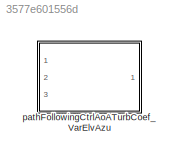
MODEL slx_3577e601556d
KIND library
CONFIG AbsTol = auto
CONFIG EnableMultiTasking = off
CONFIG FixedStep = auto
CONFIG MaxStep = auto
CONFIG MinStep = auto
CONFIG RelTol = 1e-3
CONFIG SampleTimeConstraint = Unconstrained
CONFIG SolverName = VariableStepAuto
CONFIG StartTime = 0.0
CONFIG StopTime = 10.0
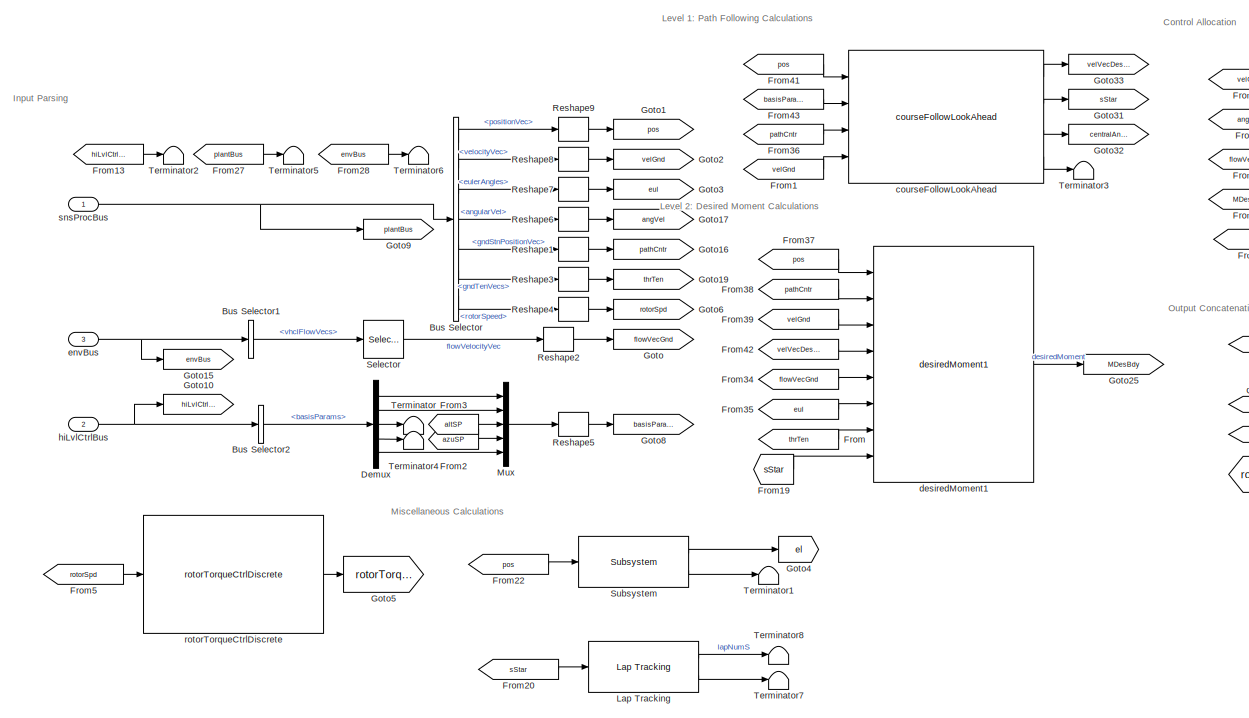
[diagram: pathFollowingCtrlAoATurbCoef_VarElvAzu - part 1/3, center side, full height]
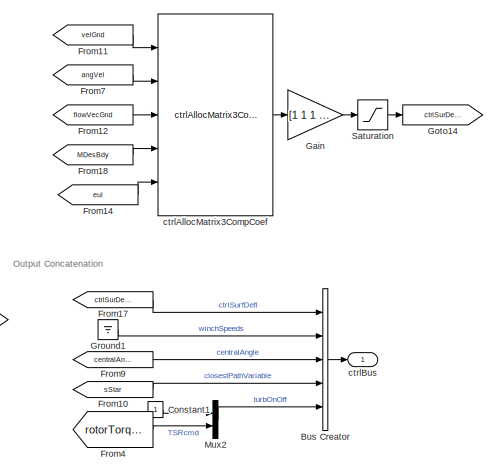
[diagram: pathFollowingCtrlAoATurbCoef_VarElvAzu - part 2/3, middle right region]
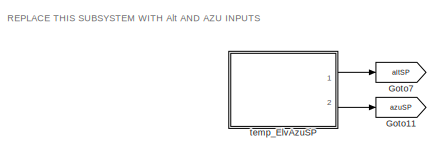
[diagram: pathFollowingCtrlAoATurbCoef_VarElvAzu - part 3/3, middle left region]
BLOCK [SubSystem] pathFollowingCtrlAoATurbCoef_VarElvAzu
  InitFcn = initializeBussesFromBlock(gcb);
  LoadFcn = initializeBussesFromBlock(gcb);
  Ports = [3, 1]
  PreSaveFcn = initializeBussesFromBlock(gcb);
  RequestExecContextInheritance = off
  VariantControl = strcmpi(FLIGHTCONTROLLER,'pathFollowingCtrlAoATurbCoef_varElvAzu')
BLOCK [BusCreator] pathFollowingCtrlAoATurbCoef_VarElvAzu/Bus Creator
  DisplayOption = bar
  InheritFromInputs = on
  Inputs = 5
  Ports = [5, 1]
BLOCK [BusSelector] pathFollowingCtrlAoATurbCoef_VarElvAzu/Bus Selector
  OutputSignals = positionVec,velocityVec,eulerAngles,angularVel,gndStnPositionVec,gndTenVecs,rotorSpeed
  Ports = [1, 7]
BLOCK [BusSelector] pathFollowingCtrlAoATurbCoef_VarElvAzu/Bus Selector1
  OutputSignals = vhclFlowVecs
  Ports = [1, 1]
BLOCK [BusSelector] pathFollowingCtrlAoATurbCoef_VarElvAzu/Bus Selector2
  OutputSignals = basisParams
  Ports = [1, 1]
BLOCK [Constant] pathFollowingCtrlAoATurbCoef_VarElvAzu/Constant1
BLOCK [Demux] pathFollowingCtrlAoATurbCoef_VarElvAzu/Demux
  Outputs = 5
  Ports = [1, 5]
BLOCK [From] pathFollowingCtrlAoATurbCoef_VarElvAzu/From
  GotoTag = thrTen
BLOCK [From] pathFollowingCtrlAoATurbCoef_VarElvAzu/From1
  GotoTag = velGnd
BLOCK [From] pathFollowingCtrlAoATurbCoef_VarElvAzu/From10
  GotoTag = sStar
BLOCK [From] pathFollowingCtrlAoATurbCoef_VarElvAzu/From11
  GotoTag = velGnd
BLOCK [From] pathFollowingCtrlAoATurbCoef_VarElvAzu/From12
  GotoTag = flowVecGnd
BLOCK [From] pathFollowingCtrlAoATurbCoef_VarElvAzu/From13
  GotoTag = hiLvlCtrlBus
BLOCK [From] pathFollowingCtrlAoATurbCoef_VarElvAzu/From14
  GotoTag = eul
BLOCK [From] pathFollowingCtrlAoATurbCoef_VarElvAzu/From17
  GotoTag = ctrlSurDefl
BLOCK [From] pathFollowingCtrlAoATurbCoef_VarElvAzu/From18
  GotoTag = MDesBdy
BLOCK [From] pathFollowingCtrlAoATurbCoef_VarElvAzu/From19
  GotoTag = sStar
BLOCK [From] pathFollowingCtrlAoATurbCoef_VarElvAzu/From2
  GotoTag = azuSP
BLOCK [From] pathFollowingCtrlAoATurbCoef_VarElvAzu/From20
  GotoTag = sStar
BLOCK [From] pathFollowingCtrlAoATurbCoef_VarElvAzu/From22
  GotoTag = pos
BLOCK [From] pathFollowingCtrlAoATurbCoef_VarElvAzu/From27
  GotoTag = plantBus
BLOCK [From] pathFollowingCtrlAoATurbCoef_VarElvAzu/From28
  GotoTag = envBus
BLOCK [From] pathFollowingCtrlAoATurbCoef_VarElvAzu/From3
  GotoTag = altSP
BLOCK [From] pathFollowingCtrlAoATurbCoef_VarElvAzu/From34
  GotoTag = flowVecGnd
BLOCK [From] pathFollowingCtrlAoATurbCoef_VarElvAzu/From35
  GotoTag = eul
BLOCK [From] pathFollowingCtrlAoATurbCoef_VarElvAzu/From36
  GotoTag = pathCntr
BLOCK [From] pathFollowingCtrlAoATurbCoef_VarElvAzu/From37
  GotoTag = pos
BLOCK [From] pathFollowingCtrlAoATurbCoef_VarElvAzu/From38
  GotoTag = pathCntr
BLOCK [From] pathFollowingCtrlAoATurbCoef_VarElvAzu/From39
  GotoTag = velGnd
BLOCK [From] pathFollowingCtrlAoATurbCoef_VarElvAzu/From4
  GotoTag = rotorTorque
BLOCK [From] pathFollowingCtrlAoATurbCoef_VarElvAzu/From41
  GotoTag = pos
BLOCK [From] pathFollowingCtrlAoATurbCoef_VarElvAzu/From42
  GotoTag = velVecDesGnd
BLOCK [From] pathFollowingCtrlAoATurbCoef_VarElvAzu/From43
  GotoTag = basisParams
BLOCK [From] pathFollowingCtrlAoATurbCoef_VarElvAzu/From5
  GotoTag = rotorSpd
BLOCK [From] pathFollowingCtrlAoATurbCoef_VarElvAzu/From7
  GotoTag = angVel
BLOCK [From] pathFollowingCtrlAoATurbCoef_VarElvAzu/From9
  GotoTag = centralAngle
BLOCK [Gain] pathFollowingCtrlAoATurbCoef_VarElvAzu/Gain
  Gain = [1 1 1 -1]
BLOCK [Goto] pathFollowingCtrlAoATurbCoef_VarElvAzu/Goto
  GotoTag = flowVecGnd
BLOCK [Goto] pathFollowingCtrlAoATurbCoef_VarElvAzu/Goto1
  GotoTag = pos
BLOCK [Goto] pathFollowingCtrlAoATurbCoef_VarElvAzu/Goto10
  GotoTag = hiLvlCtrlBus
BLOCK [Goto] pathFollowingCtrlAoATurbCoef_VarElvAzu/Goto11
  GotoTag = azuSP
BLOCK [Goto] pathFollowingCtrlAoATurbCoef_VarElvAzu/Goto14
  GotoTag = ctrlSurDefl
BLOCK [Goto] pathFollowingCtrlAoATurbCoef_VarElvAzu/Goto15
  GotoTag = envBus
BLOCK [Goto] pathFollowingCtrlAoATurbCoef_VarElvAzu/Goto16
  GotoTag = pathCntr
BLOCK [Goto] pathFollowingCtrlAoATurbCoef_VarElvAzu/Goto17
  GotoTag = angVel
BLOCK [Goto] pathFollowingCtrlAoATurbCoef_VarElvAzu/Goto19
  GotoTag = thrTen
BLOCK [Goto] pathFollowingCtrlAoATurbCoef_VarElvAzu/Goto2
  GotoTag = velGnd
BLOCK [Goto] pathFollowingCtrlAoATurbCoef_VarElvAzu/Goto25
  GotoTag = MDesBdy
BLOCK [Goto] pathFollowingCtrlAoATurbCoef_VarElvAzu/Goto3
  GotoTag = eul
BLOCK [Goto] pathFollowingCtrlAoATurbCoef_VarElvAzu/Goto31
  GotoTag = sStar
BLOCK [Goto] pathFollowingCtrlAoATurbCoef_VarElvAzu/Goto32
  GotoTag = centralAngle
BLOCK [Goto] pathFollowingCtrlAoATurbCoef_VarElvAzu/Goto33
  GotoTag = velVecDesGnd
BLOCK [Goto] pathFollowingCtrlAoATurbCoef_VarElvAzu/Goto4
  GotoTag = el
BLOCK [Goto] pathFollowingCtrlAoATurbCoef_VarElvAzu/Goto5
  GotoTag = rotorTorque
BLOCK [Goto] pathFollowingCtrlAoATurbCoef_VarElvAzu/Goto6
  GotoTag = rotorSpd
BLOCK [Goto] pathFollowingCtrlAoATurbCoef_VarElvAzu/Goto7
  GotoTag = altSP
BLOCK [Goto] pathFollowingCtrlAoATurbCoef_VarElvAzu/Goto8
  GotoTag = basisParams
BLOCK [Goto] pathFollowingCtrlAoATurbCoef_VarElvAzu/Goto9
  GotoTag = plantBus
BLOCK [Ground] pathFollowingCtrlAoATurbCoef_VarElvAzu/Ground1
BLOCK [Reference] pathFollowingCtrlAoATurbCoef_VarElvAzu/Lap Tracking  REF=pathFollowingCtrlAoATurbOpt_cl/pathFollowingCtrlAoATurbOpt/Lap Tracking
  Ports = [1, 2]
  SourceBlock = pathFollowingCtrlAoATurbOpt_cl/pathFollowingCtrlAoATurbOpt/Lap Tracking
  SourceType = SubSystem
BLOCK [Mux] pathFollowingCtrlAoATurbCoef_VarElvAzu/Mux
  DisplayOption = bar
  Inputs = 5
  Ports = [5, 1]
BLOCK [Mux] pathFollowingCtrlAoATurbCoef_VarElvAzu/Mux2
  DisplayOption = bar
  Inputs = 2
  Ports = [2, 1]
BLOCK [Reshape] pathFollowingCtrlAoATurbCoef_VarElvAzu/Reshape1
  OutputDimensionality = Column vector (2-D)
  Ports = [1, 1]
BLOCK [Reshape] pathFollowingCtrlAoATurbCoef_VarElvAzu/Reshape2
  OutputDimensionality = Column vector (2-D)
  Ports = [1, 1]
BLOCK [Reshape] pathFollowingCtrlAoATurbCoef_VarElvAzu/Reshape3
  OutputDimensionality = Column vector (2-D)
  Ports = [1, 1]
BLOCK [Reshape] pathFollowingCtrlAoATurbCoef_VarElvAzu/Reshape4
  OutputDimensionality = Column vector (2-D)
  Ports = [1, 1]
BLOCK [Reshape] pathFollowingCtrlAoATurbCoef_VarElvAzu/Reshape5
  OutputDimensionality = Column vector (2-D)
  Ports = [1, 1]
BLOCK [Reshape] pathFollowingCtrlAoATurbCoef_VarElvAzu/Reshape6
  OutputDimensionality = Column vector (2-D)
  Ports = [1, 1]
BLOCK [Reshape] pathFollowingCtrlAoATurbCoef_VarElvAzu/Reshape7
  OutputDimensionality = Column vector (2-D)
  Ports = [1, 1]
BLOCK [Reshape] pathFollowingCtrlAoATurbCoef_VarElvAzu/Reshape8
  OutputDimensionality = Column vector (2-D)
  Ports = [1, 1]
BLOCK [Reshape] pathFollowingCtrlAoATurbCoef_VarElvAzu/Reshape9
  OutputDimensionality = Column vector (2-D)
  Ports = [1, 1]
BLOCK [Saturate] pathFollowingCtrlAoATurbCoef_VarElvAzu/Saturation
  LowerLimit = -90
  UpperLimit = 90
BLOCK [Selector] pathFollowingCtrlAoATurbCoef_VarElvAzu/Selector
  IndexOptions = Select all,Index vector (dialog)
  Indices = [1 3],5
  InputPortWidth = 3
  NumberOfDimensions = 2
  OutputSizes = 1,1
  Ports = [1, 1]
BLOCK [Reference] pathFollowingCtrlAoATurbCoef_VarElvAzu/Subsystem  REF=pathFollowingCtrlAoATurbCoef_cl/pathFollowingCtrlAoATurbCoef/Subsystem
  Ports = [1, 2]
  SourceBlock = pathFollowingCtrlAoATurbCoef_cl/pathFollowingCtrlAoATurbCoef/Subsystem
BLOCK [Terminator] pathFollowingCtrlAoATurbCoef_VarElvAzu/Terminator
BLOCK [Terminator] pathFollowingCtrlAoATurbCoef_VarElvAzu/Terminator1
BLOCK [Terminator] pathFollowingCtrlAoATurbCoef_VarElvAzu/Terminator2
BLOCK [Terminator] pathFollowingCtrlAoATurbCoef_VarElvAzu/Terminator3
BLOCK [Terminator] pathFollowingCtrlAoATurbCoef_VarElvAzu/Terminator4
BLOCK [Terminator] pathFollowingCtrlAoATurbCoef_VarElvAzu/Terminator5
BLOCK [Terminator] pathFollowingCtrlAoATurbCoef_VarElvAzu/Terminator6
BLOCK [Terminator] pathFollowingCtrlAoATurbCoef_VarElvAzu/Terminator7
BLOCK [Terminator] pathFollowingCtrlAoATurbCoef_VarElvAzu/Terminator8
BLOCK [Reference] pathFollowingCtrlAoATurbCoef_VarElvAzu/courseFollowLookAhead  REF=courseFollowLookAhead_cl/courseFollowLookAhead
  Ports = [4, 4]
  SourceBlock = courseFollowLookAhead_cl/courseFollowLookAhead
  SourceType = SubSystem
BLOCK [Reference] pathFollowingCtrlAoATurbCoef_VarElvAzu/ctrlAllocMatrix3CompCoef  REF=ctrlAllocMatrix3CompCoef_cl/ctrlAllocMatrix3CompCoef
  Ports = [5, 1]
  SourceBlock = ctrlAllocMatrix3CompCoef_cl/ctrlAllocMatrix3CompCoef
BLOCK [Outport] pathFollowingCtrlAoATurbCoef_VarElvAzu/ctrlBus
  OutDataTypeStr = Bus: fltCtrlBus
  VectorParamsAs1DForOutWhenUnconnected = off
BLOCK [Reference] pathFollowingCtrlAoATurbCoef_VarElvAzu/desiredMoment1  REF=pathFollowingCtrlAoATurbCoef_cl/pathFollowingCtrlAoATurbCoef/desiredMoment1
  Ports = [8, 1]
  SourceBlock = pathFollowingCtrlAoATurbCoef_cl/pathFollowingCtrlAoATurbCoef/desiredMoment1
  SourceType = SubSystem
BLOCK [Inport] pathFollowingCtrlAoATurbCoef_VarElvAzu/envBus
  OutDataTypeStr = Bus: envBus
  Port = 3
BLOCK [Inport] pathFollowingCtrlAoATurbCoef_VarElvAzu/hiLvlCtrlBus
  Port = 2
BLOCK [Reference] pathFollowingCtrlAoATurbCoef_VarElvAzu/rotorTorqueCtrlDiscrete  REF=rotorTorqueCtrlDiscrete/rotorTorqueCtrlDiscrete
  Ports = [1, 1]
  SourceBlock = rotorTorqueCtrlDiscrete/rotorTorqueCtrlDiscrete
BLOCK [Inport] pathFollowingCtrlAoATurbCoef_VarElvAzu/snsProcBus
  OutDataTypeStr = Bus: sensorsProcessingBus
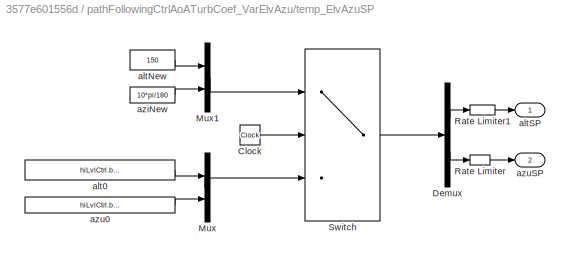
BLOCK [SubSystem] pathFollowingCtrlAoATurbCoef_VarElvAzu/temp_ElvAzuSP
  Ports = [0, 2]
  RequestExecContextInheritance = off
BLOCK [Clock] pathFollowingCtrlAoATurbCoef_VarElvAzu/temp_ElvAzuSP/Clock
BLOCK [Demux] pathFollowingCtrlAoATurbCoef_VarElvAzu/temp_ElvAzuSP/Demux
  Outputs = 2
  Ports = [1, 2]
BLOCK [Mux] pathFollowingCtrlAoATurbCoef_VarElvAzu/temp_ElvAzuSP/Mux
  DisplayOption = bar
  Inputs = 2
  Ports = [2, 1]
BLOCK [Mux] pathFollowingCtrlAoATurbCoef_VarElvAzu/temp_ElvAzuSP/Mux1
  DisplayOption = bar
  Inputs = 2
  Ports = [2, 1]
BLOCK [RateLimiter] pathFollowingCtrlAoATurbCoef_VarElvAzu/temp_ElvAzuSP/Rate Limiter
  FallingSlewLimit = -0.025*pi/180
  RisingSlewLimit = 0.025*pi/180
  SampleTimeMode = inherited
BLOCK [RateLimiter] pathFollowingCtrlAoATurbCoef_VarElvAzu/temp_ElvAzuSP/Rate Limiter1
  FallingSlewLimit = -flwSpd/2
  RisingSlewLimit = flwSpd/2
  SampleTimeMode = inherited
BLOCK [Switch] pathFollowingCtrlAoATurbCoef_VarElvAzu/temp_ElvAzuSP/Switch
  Criteria = u2 > Threshold
  InputSameDT = off
  SaturateOnIntegerOverflow = off
  Threshold = 500
BLOCK [Constant] pathFollowingCtrlAoATurbCoef_VarElvAzu/temp_ElvAzuSP/alt0
  Value = hiLvlCtrl.basisParams.Value(3)
BLOCK [Constant] pathFollowingCtrlAoATurbCoef_VarElvAzu/temp_ElvAzuSP/altNew
  Value = 150
BLOCK [Outport] pathFollowingCtrlAoATurbCoef_VarElvAzu/temp_ElvAzuSP/altSP
BLOCK [Constant] pathFollowingCtrlAoATurbCoef_VarElvAzu/temp_ElvAzuSP/aziNew
  OutDataTypeStr = Inherit: Inherit via back propagation
  Value = 10*pi/180
BLOCK [Constant] pathFollowingCtrlAoATurbCoef_VarElvAzu/temp_ElvAzuSP/azu0
  OutDataTypeStr = Inherit: Inherit via back propagation
  Value = hiLvlCtrl.basisParams.Value(4)
BLOCK [Outport] pathFollowingCtrlAoATurbCoef_VarElvAzu/temp_ElvAzuSP/azuSP
  Port = 2
ANNOTATION pathFollowingCtrlAoATurbCoef_VarElvAzu: REPLACE THIS SUBSYSTEM WITH Alt AND AZU INPUTS
ANNOTATION pathFollowingCtrlAoATurbCoef_VarElvAzu: Control Allocation
ANNOTATION pathFollowingCtrlAoATurbCoef_VarElvAzu: Input Parsing
ANNOTATION pathFollowingCtrlAoATurbCoef_VarElvAzu: Level 1: Path Following Calculations
ANNOTATION pathFollowingCtrlAoATurbCoef_VarElvAzu: Level 2: Desired Moment Calculations
ANNOTATION pathFollowingCtrlAoATurbCoef_VarElvAzu: Miscellaneous Calculations
ANNOTATION pathFollowingCtrlAoATurbCoef_VarElvAzu: Output Concatenation
LINE pathFollowingCtrlAoATurbCoef_VarElvAzu/Bus Creator:1 -> pathFollowingCtrlAoATurbCoef_VarElvAzu/ctrlBus:1
LINE pathFollowingCtrlAoATurbCoef_VarElvAzu/Bus Selector1:1 -> pathFollowingCtrlAoATurbCoef_VarElvAzu/Selector:1
LINE pathFollowingCtrlAoATurbCoef_VarElvAzu/Bus Selector2:1 -> pathFollowingCtrlAoATurbCoef_VarElvAzu/Demux:1
LINE pathFollowingCtrlAoATurbCoef_VarElvAzu/Bus Selector:1 -> pathFollowingCtrlAoATurbCoef_VarElvAzu/Reshape9:1
LINE pathFollowingCtrlAoATurbCoef_VarElvAzu/Bus Selector:2 -> pathFollowingCtrlAoATurbCoef_VarElvAzu/Reshape8:1
LINE pathFollowingCtrlAoATurbCoef_VarElvAzu/Bus Selector:3 -> pathFollowingCtrlAoATurbCoef_VarElvAzu/Reshape7:1
LINE pathFollowingCtrlAoATurbCoef_VarElvAzu/Bus Selector:4 -> pathFollowingCtrlAoATurbCoef_VarElvAzu/Reshape6:1
LINE pathFollowingCtrlAoATurbCoef_VarElvAzu/Bus Selector:5 -> pathFollowingCtrlAoATurbCoef_VarElvAzu/Reshape1:1
LINE pathFollowingCtrlAoATurbCoef_VarElvAzu/Bus Selector:6 -> pathFollowingCtrlAoATurbCoef_VarElvAzu/Reshape3:1
LINE pathFollowingCtrlAoATurbCoef_VarElvAzu/Bus Selector:7 -> pathFollowingCtrlAoATurbCoef_VarElvAzu/Reshape4:1
LINE pathFollowingCtrlAoATurbCoef_VarElvAzu/Constant1:1 -> pathFollowingCtrlAoATurbCoef_VarElvAzu/Mux2:1
LINE pathFollowingCtrlAoATurbCoef_VarElvAzu/Demux:1 -> pathFollowingCtrlAoATurbCoef_VarElvAzu/Mux:1
LINE pathFollowingCtrlAoATurbCoef_VarElvAzu/Demux:2 -> pathFollowingCtrlAoATurbCoef_VarElvAzu/Mux:2
LINE pathFollowingCtrlAoATurbCoef_VarElvAzu/Demux:3 -> pathFollowingCtrlAoATurbCoef_VarElvAzu/Terminator:1
LINE pathFollowingCtrlAoATurbCoef_VarElvAzu/Demux:4 -> pathFollowingCtrlAoATurbCoef_VarElvAzu/Terminator4:1
LINE pathFollowingCtrlAoATurbCoef_VarElvAzu/Demux:5 -> pathFollowingCtrlAoATurbCoef_VarElvAzu/Mux:5
LINE pathFollowingCtrlAoATurbCoef_VarElvAzu/From10:1 -> pathFollowingCtrlAoATurbCoef_VarElvAzu/Bus Creator:4
LINE pathFollowingCtrlAoATurbCoef_VarElvAzu/From11:1 -> pathFollowingCtrlAoATurbCoef_VarElvAzu/ctrlAllocMatrix3CompCoef:1
LINE pathFollowingCtrlAoATurbCoef_VarElvAzu/From12:1 -> pathFollowingCtrlAoATurbCoef_VarElvAzu/ctrlAllocMatrix3CompCoef:3
LINE pathFollowingCtrlAoATurbCoef_VarElvAzu/From13:1 -> pathFollowingCtrlAoATurbCoef_VarElvAzu/Terminator2:1
LINE pathFollowingCtrlAoATurbCoef_VarElvAzu/From14:1 -> pathFollowingCtrlAoATurbCoef_VarElvAzu/ctrlAllocMatrix3CompCoef:5
LINE pathFollowingCtrlAoATurbCoef_VarElvAzu/From17:1 -> pathFollowingCtrlAoATurbCoef_VarElvAzu/Bus Creator:1
LINE pathFollowingCtrlAoATurbCoef_VarElvAzu/From18:1 -> pathFollowingCtrlAoATurbCoef_VarElvAzu/ctrlAllocMatrix3CompCoef:4
LINE pathFollowingCtrlAoATurbCoef_VarElvAzu/From19:1 -> pathFollowingCtrlAoATurbCoef_VarElvAzu/desiredMoment1:8
LINE pathFollowingCtrlAoATurbCoef_VarElvAzu/From1:1 -> pathFollowingCtrlAoATurbCoef_VarElvAzu/courseFollowLookAhead:4
LINE pathFollowingCtrlAoATurbCoef_VarElvAzu/From20:1 -> pathFollowingCtrlAoATurbCoef_VarElvAzu/Lap Tracking:1
LINE pathFollowingCtrlAoATurbCoef_VarElvAzu/From22:1 -> pathFollowingCtrlAoATurbCoef_VarElvAzu/Subsystem:1
LINE pathFollowingCtrlAoATurbCoef_VarElvAzu/From27:1 -> pathFollowingCtrlAoATurbCoef_VarElvAzu/Terminator5:1
LINE pathFollowingCtrlAoATurbCoef_VarElvAzu/From28:1 -> pathFollowingCtrlAoATurbCoef_VarElvAzu/Terminator6:1
LINE pathFollowingCtrlAoATurbCoef_VarElvAzu/From2:1 -> pathFollowingCtrlAoATurbCoef_VarElvAzu/Mux:4
LINE pathFollowingCtrlAoATurbCoef_VarElvAzu/From34:1 -> pathFollowingCtrlAoATurbCoef_VarElvAzu/desiredMoment1:5
LINE pathFollowingCtrlAoATurbCoef_VarElvAzu/From35:1 -> pathFollowingCtrlAoATurbCoef_VarElvAzu/desiredMoment1:6
LINE pathFollowingCtrlAoATurbCoef_VarElvAzu/From36:1 -> pathFollowingCtrlAoATurbCoef_VarElvAzu/courseFollowLookAhead:3
LINE pathFollowingCtrlAoATurbCoef_VarElvAzu/From37:1 -> pathFollowingCtrlAoATurbCoef_VarElvAzu/desiredMoment1:1
LINE pathFollowingCtrlAoATurbCoef_VarElvAzu/From38:1 -> pathFollowingCtrlAoATurbCoef_VarElvAzu/desiredMoment1:2
LINE pathFollowingCtrlAoATurbCoef_VarElvAzu/From39:1 -> pathFollowingCtrlAoATurbCoef_VarElvAzu/desiredMoment1:3
LINE pathFollowingCtrlAoATurbCoef_VarElvAzu/From3:1 -> pathFollowingCtrlAoATurbCoef_VarElvAzu/Mux:3
LINE pathFollowingCtrlAoATurbCoef_VarElvAzu/From41:1 -> pathFollowingCtrlAoATurbCoef_VarElvAzu/courseFollowLookAhead:1
LINE pathFollowingCtrlAoATurbCoef_VarElvAzu/From42:1 -> pathFollowingCtrlAoATurbCoef_VarElvAzu/desiredMoment1:4
LINE pathFollowingCtrlAoATurbCoef_VarElvAzu/From43:1 -> pathFollowingCtrlAoATurbCoef_VarElvAzu/courseFollowLookAhead:2
LINE pathFollowingCtrlAoATurbCoef_VarElvAzu/From4:1 -> pathFollowingCtrlAoATurbCoef_VarElvAzu/Mux2:2
LINE pathFollowingCtrlAoATurbCoef_VarElvAzu/From5:1 -> pathFollowingCtrlAoATurbCoef_VarElvAzu/rotorTorqueCtrlDiscrete:1
LINE pathFollowingCtrlAoATurbCoef_VarElvAzu/From7:1 -> pathFollowingCtrlAoATurbCoef_VarElvAzu/ctrlAllocMatrix3CompCoef:2
LINE pathFollowingCtrlAoATurbCoef_VarElvAzu/From9:1 -> pathFollowingCtrlAoATurbCoef_VarElvAzu/Bus Creator:3
LINE pathFollowingCtrlAoATurbCoef_VarElvAzu/From:1 -> pathFollowingCtrlAoATurbCoef_VarElvAzu/desiredMoment1:7
LINE pathFollowingCtrlAoATurbCoef_VarElvAzu/Gain:1 -> pathFollowingCtrlAoATurbCoef_VarElvAzu/Saturation:1
LINE pathFollowingCtrlAoATurbCoef_VarElvAzu/Ground1:1 -> pathFollowingCtrlAoATurbCoef_VarElvAzu/Bus Creator:2
LINE pathFollowingCtrlAoATurbCoef_VarElvAzu/Lap Tracking:1 -> pathFollowingCtrlAoATurbCoef_VarElvAzu/Terminator8:1
LINE pathFollowingCtrlAoATurbCoef_VarElvAzu/Lap Tracking:2 -> pathFollowingCtrlAoATurbCoef_VarElvAzu/Terminator7:1
LINE pathFollowingCtrlAoATurbCoef_VarElvAzu/Mux2:1 -> pathFollowingCtrlAoATurbCoef_VarElvAzu/Bus Creator:5
LINE pathFollowingCtrlAoATurbCoef_VarElvAzu/Mux:1 -> pathFollowingCtrlAoATurbCoef_VarElvAzu/Reshape5:1
LINE pathFollowingCtrlAoATurbCoef_VarElvAzu/Reshape1:1 -> pathFollowingCtrlAoATurbCoef_VarElvAzu/Goto16:1
LINE pathFollowingCtrlAoATurbCoef_VarElvAzu/Reshape2:1 -> pathFollowingCtrlAoATurbCoef_VarElvAzu/Goto:1
LINE pathFollowingCtrlAoATurbCoef_VarElvAzu/Reshape3:1 -> pathFollowingCtrlAoATurbCoef_VarElvAzu/Goto19:1
LINE pathFollowingCtrlAoATurbCoef_VarElvAzu/Reshape4:1 -> pathFollowingCtrlAoATurbCoef_VarElvAzu/Goto6:1
LINE pathFollowingCtrlAoATurbCoef_VarElvAzu/Reshape5:1 -> pathFollowingCtrlAoATurbCoef_VarElvAzu/Goto8:1
LINE pathFollowingCtrlAoATurbCoef_VarElvAzu/Reshape6:1 -> pathFollowingCtrlAoATurbCoef_VarElvAzu/Goto17:1
LINE pathFollowingCtrlAoATurbCoef_VarElvAzu/Reshape7:1 -> pathFollowingCtrlAoATurbCoef_VarElvAzu/Goto3:1
LINE pathFollowingCtrlAoATurbCoef_VarElvAzu/Reshape8:1 -> pathFollowingCtrlAoATurbCoef_VarElvAzu/Goto2:1
LINE pathFollowingCtrlAoATurbCoef_VarElvAzu/Reshape9:1 -> pathFollowingCtrlAoATurbCoef_VarElvAzu/Goto1:1
LINE pathFollowingCtrlAoATurbCoef_VarElvAzu/Saturation:1 -> pathFollowingCtrlAoATurbCoef_VarElvAzu/Goto14:1
LINE pathFollowingCtrlAoATurbCoef_VarElvAzu/Selector:1 -> pathFollowingCtrlAoATurbCoef_VarElvAzu/Reshape2:1
LINE pathFollowingCtrlAoATurbCoef_VarElvAzu/Subsystem:1 -> pathFollowingCtrlAoATurbCoef_VarElvAzu/Goto4:1
LINE pathFollowingCtrlAoATurbCoef_VarElvAzu/Subsystem:2 -> pathFollowingCtrlAoATurbCoef_VarElvAzu/Terminator1:1
LINE pathFollowingCtrlAoATurbCoef_VarElvAzu/courseFollowLookAhead:1 -> pathFollowingCtrlAoATurbCoef_VarElvAzu/Goto33:1
LINE pathFollowingCtrlAoATurbCoef_VarElvAzu/courseFollowLookAhead:2 -> pathFollowingCtrlAoATurbCoef_VarElvAzu/Goto31:1
LINE pathFollowingCtrlAoATurbCoef_VarElvAzu/courseFollowLookAhead:3 -> pathFollowingCtrlAoATurbCoef_VarElvAzu/Goto32:1
LINE pathFollowingCtrlAoATurbCoef_VarElvAzu/courseFollowLookAhead:4 -> pathFollowingCtrlAoATurbCoef_VarElvAzu/Terminator3:1
LINE pathFollowingCtrlAoATurbCoef_VarElvAzu/ctrlAllocMatrix3CompCoef:1 -> pathFollowingCtrlAoATurbCoef_VarElvAzu/Gain:1
LINE pathFollowingCtrlAoATurbCoef_VarElvAzu/desiredMoment1:1 -> pathFollowingCtrlAoATurbCoef_VarElvAzu/Goto25:1
NET pathFollowingCtrlAoATurbCoef_VarElvAzu/envBus:1 -> pathFollowingCtrlAoATurbCoef_VarElvAzu/Bus Selector1:1, pathFollowingCtrlAoATurbCoef_VarElvAzu/Goto15:1
NET pathFollowingCtrlAoATurbCoef_VarElvAzu/hiLvlCtrlBus:1 -> pathFollowingCtrlAoATurbCoef_VarElvAzu/Bus Selector2:1, pathFollowingCtrlAoATurbCoef_VarElvAzu/Goto10:1
LINE pathFollowingCtrlAoATurbCoef_VarElvAzu/rotorTorqueCtrlDiscrete:1 -> pathFollowingCtrlAoATurbCoef_VarElvAzu/Goto5:1
NET pathFollowingCtrlAoATurbCoef_VarElvAzu/snsProcBus:1 -> pathFollowingCtrlAoATurbCoef_VarElvAzu/Bus Selector:1, pathFollowingCtrlAoATurbCoef_VarElvAzu/Goto9:1
LINE pathFollowingCtrlAoATurbCoef_VarElvAzu/temp_ElvAzuSP/Clock:1 -> pathFollowingCtrlAoATurbCoef_VarElvAzu/temp_ElvAzuSP/Switch:2
LINE pathFollowingCtrlAoATurbCoef_VarElvAzu/temp_ElvAzuSP/Demux:1 -> pathFollowingCtrlAoATurbCoef_VarElvAzu/temp_ElvAzuSP/Rate Limiter1:1
LINE pathFollowingCtrlAoATurbCoef_VarElvAzu/temp_ElvAzuSP/Demux:2 -> pathFollowingCtrlAoATurbCoef_VarElvAzu/temp_ElvAzuSP/Rate Limiter:1
LINE pathFollowingCtrlAoATurbCoef_VarElvAzu/temp_ElvAzuSP/Mux1:1 -> pathFollowingCtrlAoATurbCoef_VarElvAzu/temp_ElvAzuSP/Switch:1
LINE pathFollowingCtrlAoATurbCoef_VarElvAzu/temp_ElvAzuSP/Mux:1 -> pathFollowingCtrlAoATurbCoef_VarElvAzu/temp_ElvAzuSP/Switch:3
LINE pathFollowingCtrlAoATurbCoef_VarElvAzu/temp_ElvAzuSP/Rate Limiter1:1 -> pathFollowingCtrlAoATurbCoef_VarElvAzu/temp_ElvAzuSP/altSP:1
LINE pathFollowingCtrlAoATurbCoef_VarElvAzu/temp_ElvAzuSP/Rate Limiter:1 -> pathFollowingCtrlAoATurbCoef_VarElvAzu/temp_ElvAzuSP/azuSP:1
LINE pathFollowingCtrlAoATurbCoef_VarElvAzu/temp_ElvAzuSP/Switch:1 -> pathFollowingCtrlAoATurbCoef_VarElvAzu/temp_ElvAzuSP/Demux:1
LINE pathFollowingCtrlAoATurbCoef_VarElvAzu/temp_ElvAzuSP/alt0:1 -> pathFollowingCtrlAoATurbCoef_VarElvAzu/temp_ElvAzuSP/Mux:1
LINE pathFollowingCtrlAoATurbCoef_VarElvAzu/temp_ElvAzuSP/altNew:1 -> pathFollowingCtrlAoATurbCoef_VarElvAzu/temp_ElvAzuSP/Mux1:1
LINE pathFollowingCtrlAoATurbCoef_VarElvAzu/temp_ElvAzuSP/aziNew:1 -> pathFollowingCtrlAoATurbCoef_VarElvAzu/temp_ElvAzuSP/Mux1:2
LINE pathFollowingCtrlAoATurbCoef_VarElvAzu/temp_ElvAzuSP/azu0:1 -> pathFollowingCtrlAoATurbCoef_VarElvAzu/temp_ElvAzuSP/Mux:2
LINE pathFollowingCtrlAoATurbCoef_VarElvAzu/temp_ElvAzuSP:1 -> pathFollowingCtrlAoATurbCoef_VarElvAzu/Goto7:1
LINE pathFollowingCtrlAoATurbCoef_VarElvAzu/temp_ElvAzuSP:2 -> pathFollowingCtrlAoATurbCoef_VarElvAzu/Goto11:1
note: NET lines group one-source signal fan-out (src -> all destinations, sorted); 1:1 wires keep LINE
